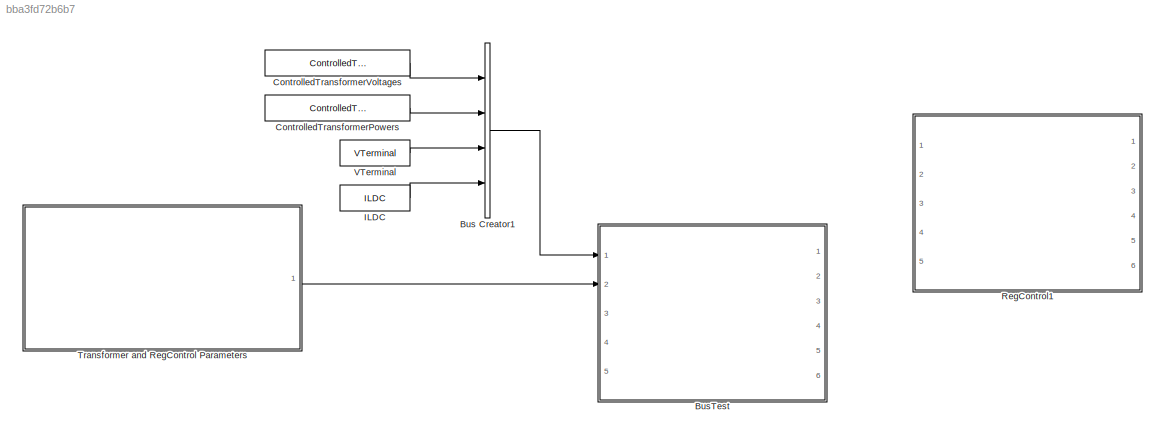
MODEL slx_bba3fd72b6b7
KIND model
CONFIG AbsTol = auto
CONFIG EnableMultiTasking = off
CONFIG FixedStep = auto
CONFIG MaxStep = auto
CONFIG MinStep = auto
CONFIG RelTol = 1e-3
CONFIG SampleTimeConstraint = Unconstrained
CONFIG Solver = VariableStepAuto
CONFIG SolverName = VariableStepAuto
CONFIG StartTime = 0.0
CONFIG StopTime = 10.0
BLOCK [BusCreator] Bus Creator1
  DisplayOption = bar
  InheritFromInputs = on
  Inputs = 4
  OutDataTypeStr = Bus: SignalBus
  Ports = [4, 1]
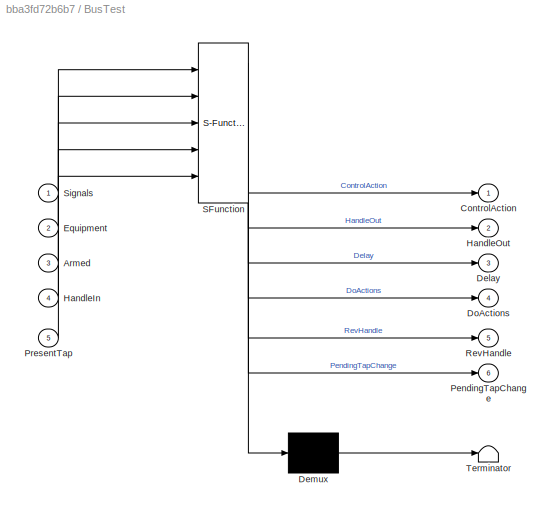
BLOCK [SubSystem] BusTest
  ErrorFcn = Stateflow.Translate.translate
  PermitHierarchicalResolution = ExplicitOnly
  Ports = [5, 6]
  RequestExecContextInheritance = off
  SFBlockType = Chart
  ShowPortLabels = SignalName
  TreatAsAtomicUnit = on
BLOCK [Demux] BusTest/ Demux 
  Outputs = 1
  Ports = [1, 1]
BLOCK [S-Function] BusTest/ SFunction 
  EnableBusSupport = on
  FunctionName = sf_sfun
  OutputPortMessageModes = n,n,n,n,m,n,n
  Parameters = 0,1.0e-12,120,3,60,false,uint8(0)
  PortCounts = [5 7]
  Ports = [5, 7]
  SFcnIsStateOwnerBlock = off
  SFunctionDeploymentMode = off
  Tag = Stateflow S-Function bustest2 3
BLOCK [Terminator] BusTest/ Terminator 
BLOCK [Inport] BusTest/Armed
  IconDisplay = Port number
  Port = 3
BLOCK [Outport] BusTest/ControlAction
  IconDisplay = Port number
BLOCK [Outport] BusTest/Delay
  IconDisplay = Port number
  Port = 3
BLOCK [Outport] BusTest/DoActions
  IconDisplay = Port number
  Port = 4
BLOCK [Inport] BusTest/Equipment
  IconDisplay = Port number
  Port = 2
BLOCK [Inport] BusTest/HandleIn
  IconDisplay = Port number
  Port = 4
BLOCK [Outport] BusTest/HandleOut
  IconDisplay = Port number
  Port = 2
BLOCK [Outport] BusTest/PendingTapChange
  IconDisplay = Port number
  Port = 6
BLOCK [Inport] BusTest/PresentTap
  IconDisplay = Port number
  Port = 5
BLOCK [Outport] BusTest/RevHandle
  IconDisplay = Port number
  Port = 5
BLOCK [Inport] BusTest/Signals
  IconDisplay = Port number
BLOCK [Constant] ControlledTransformerPowers
  Value = ControlledTransformerPowers
BLOCK [Constant] ControlledTransformerVoltages
  Value = ControlledTransformerVoltages
BLOCK [Constant] ILDC
  Value = ILDC
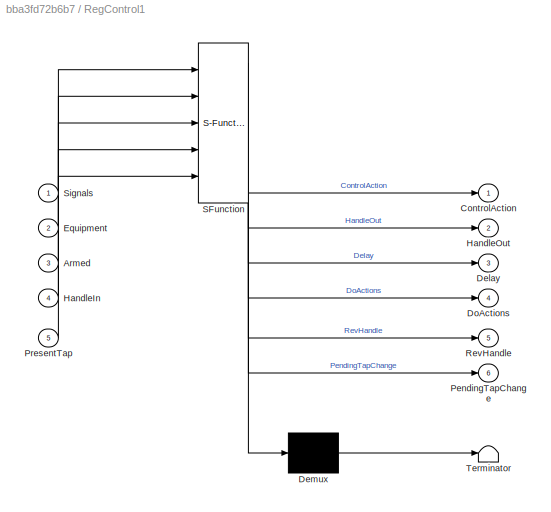
BLOCK [SubSystem] RegControl1
  Commented = on
  ErrorFcn = Stateflow.Translate.translate
  PermitHierarchicalResolution = ExplicitOnly
  Ports = [5, 6]
  RequestExecContextInheritance = off
  SFBlockType = Chart
  ShowPortLabels = SignalName
  TreatAsAtomicUnit = on
BLOCK [Demux] RegControl1/ Demux 
  Outputs = 1
  Ports = [1, 1]
BLOCK [S-Function] RegControl1/ SFunction 
  EnableBusSupport = on
  FunctionName = sf_sfun
  Parameters = 0,1,1.0e-12,120,16,3,60,BaseVoltage,false
  PortCounts = [5 7]
  Ports = [5, 7]
  SFcnIsStateOwnerBlock = off
  SFunctionDeploymentMode = off
  Tag = Stateflow S-Function bustest2 1
BLOCK [Terminator] RegControl1/ Terminator 
BLOCK [Inport] RegControl1/Armed
  IconDisplay = Port number
  Port = 3
BLOCK [Outport] RegControl1/ControlAction
  IconDisplay = Port number
BLOCK [Outport] RegControl1/Delay
  IconDisplay = Port number
  Port = 3
BLOCK [Outport] RegControl1/DoActions
  IconDisplay = Port number
  Port = 4
BLOCK [Inport] RegControl1/Equipment
  IconDisplay = Port number
  Port = 2
BLOCK [Inport] RegControl1/HandleIn
  IconDisplay = Port number
  Port = 4
BLOCK [Outport] RegControl1/HandleOut
  IconDisplay = Port number
  Port = 2
BLOCK [Outport] RegControl1/PendingTapChange
  IconDisplay = Port number
  Port = 6
BLOCK [Inport] RegControl1/PresentTap
  IconDisplay = Port number
  Port = 5
BLOCK [Outport] RegControl1/RevHandle
  IconDisplay = Port number
  Port = 5
BLOCK [Inport] RegControl1/Signals
  IconDisplay = Port number
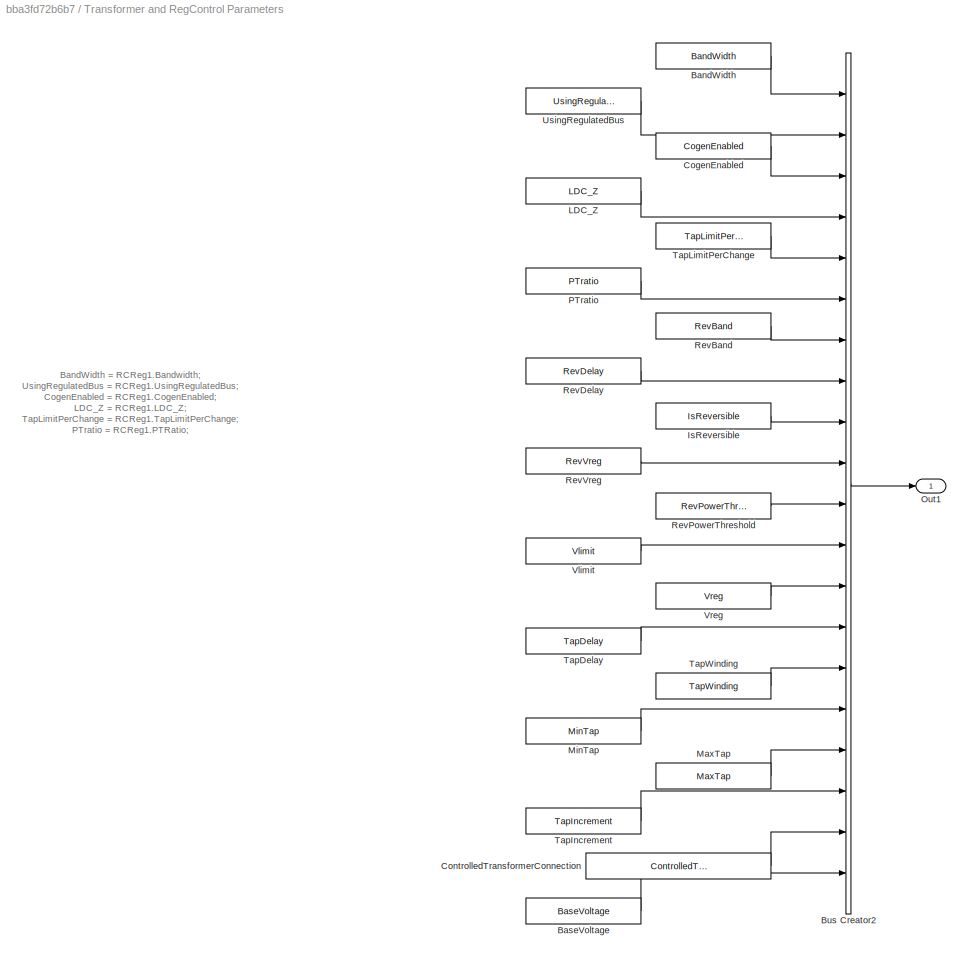
BLOCK [SubSystem] Transformer and RegControl Parameters
  Ports = [0, 1]
  RequestExecContextInheritance = off
BLOCK [Constant] Transformer and RegControl Parameters/BandWidth
  Value = BandWidth
BLOCK [Constant] Transformer and RegControl Parameters/BaseVoltage
  Value = BaseVoltage
BLOCK [BusCreator] Transformer and RegControl Parameters/Bus Creator2
  DisplayOption = bar
  InheritFromInputs = on
  Inputs = 20
  OutDataTypeStr = Bus: EquipmentBus
  Ports = [20, 1]
BLOCK [Constant] Transformer and RegControl Parameters/CogenEnabled
  Value = CogenEnabled
BLOCK [Constant] Transformer and RegControl Parameters/ControlledTransformerConnection
  Value = ControlledTransformerConnection
BLOCK [Constant] Transformer and RegControl Parameters/IsReversible
  Value = IsReversible
BLOCK [Constant] Transformer and RegControl Parameters/LDC_Z
  Value = LDC_Z
BLOCK [Constant] Transformer and RegControl Parameters/MaxTap
  Value = MaxTap
BLOCK [Constant] Transformer and RegControl Parameters/MinTap
  Value = MinTap
BLOCK [Outport] Transformer and RegControl Parameters/Out1
  IconDisplay = Port number
BLOCK [Constant] Transformer and RegControl Parameters/PTratio
  Value = PTratio
BLOCK [Constant] Transformer and RegControl Parameters/RevBand
  Value = RevBand
BLOCK [Constant] Transformer and RegControl Parameters/RevDelay
  Value = RevDelay
BLOCK [Constant] Transformer and RegControl Parameters/RevPowerThreshold
  Value = RevPowerThreshold
BLOCK [Constant] Transformer and RegControl Parameters/RevVreg
  Value = RevVreg
BLOCK [Constant] Transformer and RegControl Parameters/TapDelay
  Value = TapDelay
BLOCK [Constant] Transformer and RegControl Parameters/TapIncrement
  Value = TapIncrement
BLOCK [Constant] Transformer and RegControl Parameters/TapLimitPerChange
  Value = TapLimitPerChange
BLOCK [Constant] Transformer and RegControl Parameters/TapWinding
  Value = TapWinding
BLOCK [Constant] Transformer and RegControl Parameters/UsingRegulatedBus
  Value = UsingRegulatedBus
BLOCK [Constant] Transformer and RegControl Parameters/Vlimit
  Value = Vlimit
BLOCK [Constant] Transformer and RegControl Parameters/Vreg
  Value = Vreg
BLOCK [Constant] VTerminal
  Value = VTerminal
ANNOTATION Transformer and RegControl Parameters: BandWidth = RCReg1.Bandwidth; UsingRegulatedBus = RCReg1.UsingRegulatedBus; CogenEnabled = RCReg1.CogenEnabled; LDC_Z = RCReg1.LDC_Z; TapLimitPerChange = RCReg1.TapLimitPerChange; PTratio = RCReg1.PTRatio; RevBand = RCReg1.revBandwidth; RevDelay = RCReg1.RevDelay; IsReversible = RCReg1.IsReversible; RevVreg = RCReg1.RevVreg; RevPowerThreshold = RCReg1.revPowerThreshold; Vlimit = RCReg1.Vlimit; Vre...<+394ch>
LINE Bus Creator1:1 -> BusTest:1
LINE ControlledTransformerPowers:1 -> Bus Creator1:2
LINE ControlledTransformerVoltages:1 -> Bus Creator1:1
LINE ILDC:1 -> Bus Creator1:4
LINE Transformer and RegControl Parameters/BandWidth:1 -> Transformer and RegControl Parameters/Bus Creator2:1
LINE Transformer and RegControl Parameters/BaseVoltage:1 -> Transformer and RegControl Parameters/Bus Creator2:20
LINE Transformer and RegControl Parameters/Bus Creator2:1 -> Transformer and RegControl Parameters/Out1:1
LINE Transformer and RegControl Parameters/CogenEnabled:1 -> Transformer and RegControl Parameters/Bus Creator2:3
LINE Transformer and RegControl Parameters/ControlledTransformerConnection:1 -> Transformer and RegControl Parameters/Bus Creator2:19
LINE Transformer and RegControl Parameters/IsReversible:1 -> Transformer and RegControl Parameters/Bus Creator2:9
LINE Transformer and RegControl Parameters/LDC_Z:1 -> Transformer and RegControl Parameters/Bus Creator2:4
LINE Transformer and RegControl Parameters/MaxTap:1 -> Transformer and RegControl Parameters/Bus Creator2:17
LINE Transformer and RegControl Parameters/MinTap:1 -> Transformer and RegControl Parameters/Bus Creator2:16
LINE Transformer and RegControl Parameters/PTratio:1 -> Transformer and RegControl Parameters/Bus Creator2:6
LINE Transformer and RegControl Parameters/RevBand:1 -> Transformer and RegControl Parameters/Bus Creator2:7
LINE Transformer and RegControl Parameters/RevDelay:1 -> Transformer and RegControl Parameters/Bus Creator2:8
LINE Transformer and RegControl Parameters/RevPowerThreshold:1 -> Transformer and RegControl Parameters/Bus Creator2:11
LINE Transformer and RegControl Parameters/RevVreg:1 -> Transformer and RegControl Parameters/Bus Creator2:10
LINE Transformer and RegControl Parameters/TapDelay:1 -> Transformer and RegControl Parameters/Bus Creator2:14
LINE Transformer and RegControl Parameters/TapIncrement:1 -> Transformer and RegControl Parameters/Bus Creator2:18
LINE Transformer and RegControl Parameters/TapLimitPerChange:1 -> Transformer and RegControl Parameters/Bus Creator2:5
LINE Transformer and RegControl Parameters/TapWinding:1 -> Transformer and RegControl Parameters/Bus Creator2:15
LINE Transformer and RegControl Parameters/UsingRegulatedBus:1 -> Transformer and RegControl Parameters/Bus Creator2:2
LINE Transformer and RegControl Parameters/Vlimit:1 -> Transformer and RegControl Parameters/Bus Creator2:12
LINE Transformer and RegControl Parameters/Vreg:1 -> Transformer and RegControl Parameters/Bus Creator2:13
LINE Transformer and RegControl Parameters:1 -> BusTest:2
LINE VTerminal:1 -> Bus Creator1:3
CHART RegControl1 states=45 transitions=252
  STATE_LABEL 'ControlFlow'
  STATE_LABEL 'DetermineReversePendingLookingForward'
  STATE_LABEL 'CorrectFalseReversePending'
  STATE_LABEL '[FwdPower < (-1*RevPowerThreshold)]'
  STATE_LABEL '{ReversePending = true;\nRevHandle = ...\nPush(ActionCodes.ACTION_REVERSE, ...\nRevDelay);\n}'
  STATE_LABEL 'CorrectTrueReversePending'
  STATE_LABEL '[FwdPower >= (-1*RevPowerThreshold)]'
  STATE_LABEL '% Reset ReversePending:\n% Delete RevHandle from ControlQueue\n{DoActions.data = QueueActions.DELETE;\nsend(DoActions);\nReversePending = false;\nRevHandle = 0;}'
  STATE_LABEL 'Finished\nen: GET_VOLTAGE = true;'
  STATE_LABEL '{FwdPower = -1*real( ControlledTransformerPower(ElementTerminal) );}\n% Should we reverse?'
  STATE_LABEL '[~ReversePending]'
  STATE_LABEL '[ReversePending]'
  STATE_LABEL 'DetermineReversePendingLookingReverseOrCogen'
  STATE_LABEL 'CorrectFalseReversePending'
  STATE_LABEL '[FwdPower > RevPowerThreshold]'
  STATE_LABEL '{ReversePending = true;\nRevHandle = ...\nPush(ActionCodes.ACTION_REVERSE, ...\nRevDelay);\n}'
  STATE_LABEL 'CorrectTrueReversePending'
  STATE_LABEL '[FwdPower <= RevPowerThreshold]'
  STATE_LABEL '% Reset ReversePending:\n{ReversePending = false;}'
  STATE_LABEL 'Finished\nen: REV_NEUTRAL = true;'
  STATE_LABEL '{FwdPower = -1*real( ControlledTransformerPower(ElementTerminal) );}\n% If reversed, check if power is back in forward direction'
  STATE_LABEL '[~ReversePending]'
  STATE_LABEL '[ReversePending]'
  STATE_LABEL 'ReverseNeutralCase'
  STATE_LABEL 'Finished\nsend(GET_VOLTAGE);'
  STATE_LABEL 'Exiting\nen: EXIT = true;'
  STATE_LABEL '% tap change not specified as needed:\n[~Armed]'
  STATE_LABEL '{PendingTapChange = 0.0;}'
  STATE_LABEL '[abs(PresentTap - 1.0) < EPSILON]'
  STATE_LABEL '%{Increment = TapIncrement(TapWinding);\n%PendingTapChange = round( (1.0 - ...\n%PresentTap(TapWinding)) / Increment ) * Increment;}\n{PendingTapChange = ...\nround( (1.0 - TapWinding) / TapIncrement ) * TapIncrement;}'
  STATE_LABEL '[PendingTapChange ~= 0.0 && ~Armed]'
  STATE_LABEL '{% Push ACTION_TAPCHANGE\n% to ControlQueue with TapDelay:\nPush(ActionCodes.ACTION_TAPCHANGE, TapDelay);\nArmed = true;}'
  STATE_LABEL 'GetVoltage'
  STATE_LABEL 'Finished\nen: DETERMINE_VLOCALBUS = true;'
  STATE_LABEL '[UsingRegulatedBus]'
  STATE_LABEL '{VBuffer = ControlledTransformerWindingVoltages;\n%ControlledTransformer.GetWindingVoltages;\nVcontrol = GetControlVoltage;}'
  STATE_LABEL '{TransformerConnection = ControlledTransformerConnection;\n%TransformerConnection = ControlledTransformer.Winding(ElementTerminal).Connection;\n%Vterminal = ComputeVTerminal;\n}'
  STATE_LABEL 'DetermineVlocalbus'
  STATE_LABEL 'Finished\nen: GET_VOLTAGEWLDC = true;'
  STATE_LABEL '% Voltage limit for bus connected to regulated winding; default = 0.0 (inactive)\n[VlimitActive]'
CHART BusTest states=0 transitions=1
